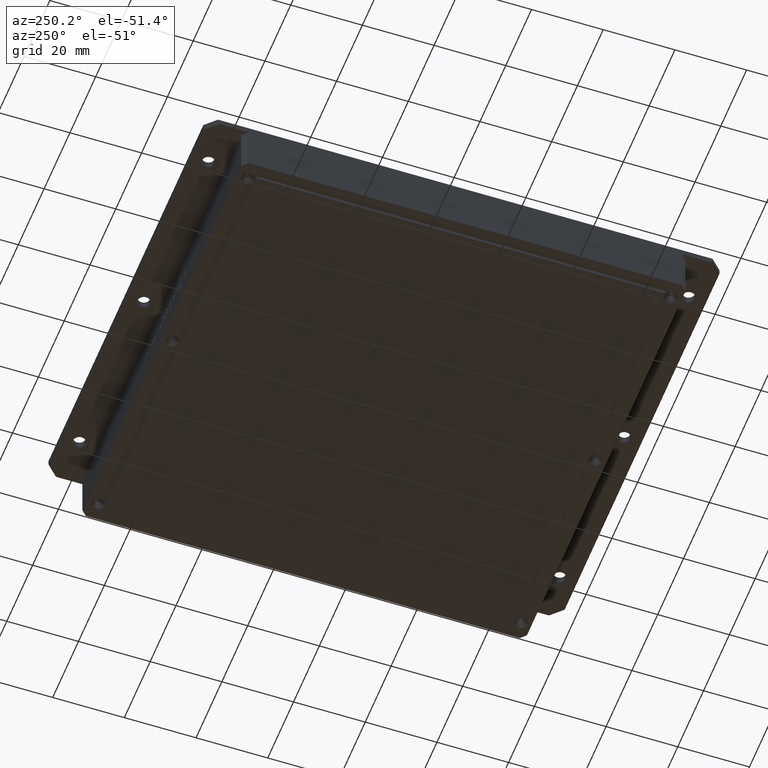
[diagram: clean part render]
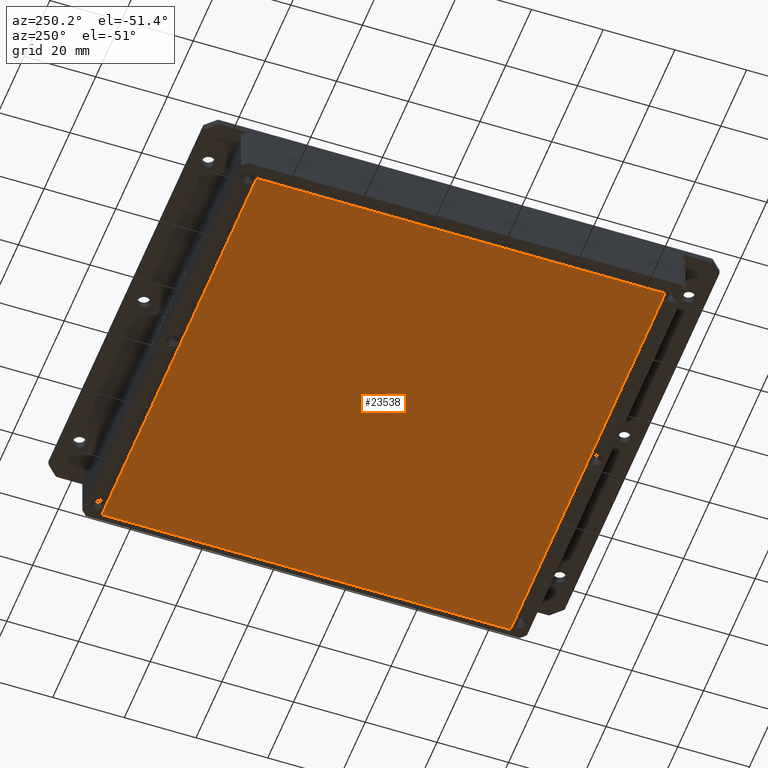
[diagram: same view with one face highlighted and labeled with its STEP entity id]
A machine part, auxiliary view. The second image highlights one B-rep face of the part: STEP entity #23538.
In plain terms, the highlighted planar face has unit normal (0, 0, -1).
Its self-contained STEP definition (entity closure, byte-faithful):
#4758 = LINE ( 'NONE', #83054, #59959 ) ;
#5995 = LINE ( 'NONE', #15081, #78928 ) ;
#6916 = CARTESIAN_POINT ( 'NONE',  ( 60.00000000000002100, -46.11034746086290400, -3.000000000016370500 ) ) ;
#7317 = LINE ( 'NONE', #69067, #63675 ) ;
#10402 = VERTEX_POINT ( 'NONE', #66588 ) ;
#11600 = CARTESIAN_POINT ( 'NONE',  ( 60.00000000000002800, 67.88965253913707400, -3.000000000016370500 ) ) ;
#11911 = DIRECTION ( 'NONE',  ( 0.0000000000000000000, -1.000000000000000000, 0.0000000000000000000 ) ) ;
#14424 = DIRECTION ( 'NONE',  ( 1.000000000000000000, -1.156482317317871500E-016, 0.0000000000000000000 ) ) ;
#15081 = CARTESIAN_POINT ( 'NONE',  ( 60.00000000000002100, -46.11034746086290400, -3.000000000016370500 ) ) ;
#16027 = EDGE_CURVE ( 'NONE', #10402, #67563, #4758, .T. ) ;
#21647 = LINE ( 'NONE', #11600, #42661 ) ;
#23538 = ADVANCED_FACE ( 'NONE', ( #91077 ), #88281, .T. ) ;
#31162 = DIRECTION ( 'NONE',  ( -1.000000000000000000, 0.0000000000000000000, -0.0000000000000000000 ) ) ;
#33934 = DIRECTION ( 'NONE',  ( 0.0000000000000000000, 1.000000000000000000, 0.0000000000000000000 ) ) ;
#41953 = ORIENTED_EDGE ( 'NONE', *, *, #83232, .T. ) ;
#42262 = EDGE_CURVE ( 'NONE', #50100, #47565, #21647, .T. ) ;
#42661 = VECTOR ( 'NONE', #11911, 1000.000000000000000 ) ;
#42686 = AXIS2_PLACEMENT_3D ( 'NONE', #73796, #60204, #31162 ) ;
#46431 = ORIENTED_EDGE ( 'NONE', *, *, #16027, .T. ) ;
#47565 = VERTEX_POINT ( 'NONE', #6916 ) ;
#48638 = EDGE_CURVE ( 'NONE', #67563, #50100, #7317, .T. ) ;
#49058 = DIRECTION ( 'NONE',  ( -1.000000000000000000, 0.0000000000000000000, 0.0000000000000000000 ) ) ;
#50100 = VERTEX_POINT ( 'NONE', #68989 ) ;
#59959 = VECTOR ( 'NONE', #33934, 1000.000000000000000 ) ;
#60204 = DIRECTION ( 'NONE',  ( 0.0000000000000000000, 0.0000000000000000000, -1.000000000000000000 ) ) ;
#63675 = VECTOR ( 'NONE', #14424, 1000.000000000000000 ) ;
#66588 = CARTESIAN_POINT ( 'NONE',  ( -59.99999999999997200, -46.11034746086290400, -3.000000000016370500 ) ) ;
#67563 = VERTEX_POINT ( 'NONE', #69914 ) ;
#68989 = CARTESIAN_POINT ( 'NONE',  ( 60.00000000000002800, 67.88965253913707400, -3.000000000016370500 ) ) ;
#69067 = CARTESIAN_POINT ( 'NONE',  ( -59.99999999999996400, 67.88965253913708900, -3.000000000016370500 ) ) ;
#69914 = CARTESIAN_POINT ( 'NONE',  ( -59.99999999999996400, 67.88965253913708900, -3.000000000016370500 ) ) ;
#71385 = ORIENTED_EDGE ( 'NONE', *, *, #42262, .T. ) ;
#73796 = CARTESIAN_POINT ( 'NONE',  ( 0.0000000000000000000, 0.0000000000000000000, -3.000000000016370500 ) ) ;
#75157 = ORIENTED_EDGE ( 'NONE', *, *, #48638, .T. ) ;
#78928 = VECTOR ( 'NONE', #49058, 1000.000000000000000 ) ;
#82972 = EDGE_LOOP ( 'NONE', ( #46431, #75157, #71385, #41953 ) ) ;
#83054 = CARTESIAN_POINT ( 'NONE',  ( -59.99999999999997200, -46.11034746086290400, -3.000000000016370500 ) ) ;
#83232 = EDGE_CURVE ( 'NONE', #47565, #10402, #5995, .T. ) ;
#88281 = PLANE ( 'NONE',  #42686 ) ;
#91077 = FACE_OUTER_BOUND ( 'NONE', #82972, .T. ) ;